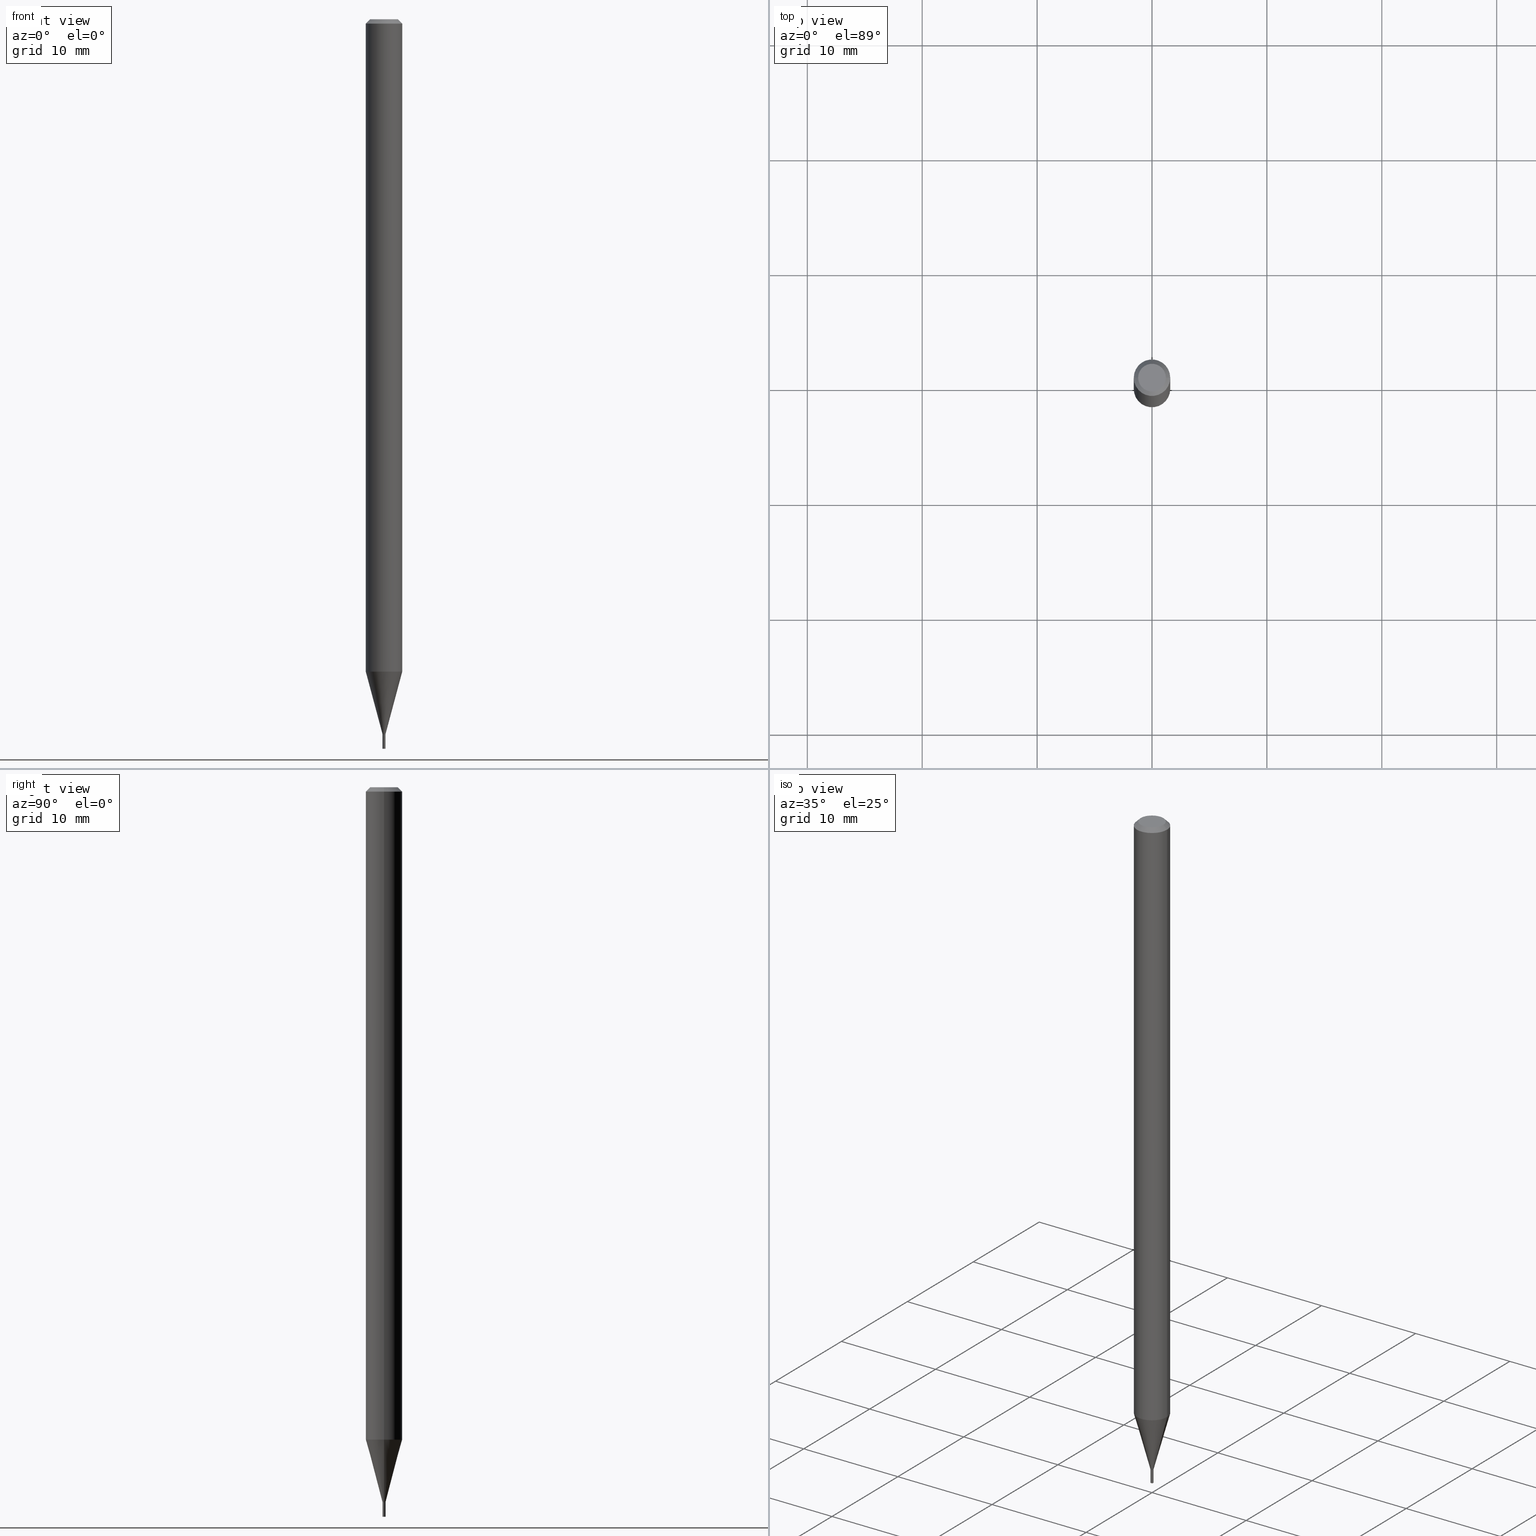
[diagram: canonical four-view strip — front | top / right | iso, engineering-drawing reading convention]
A machine part, canonical four-view strip (front | top / right | iso — engineering-drawing reading convention). The complete STEP part file that produces these views, byte-faithful:
ISO-10303-21;
HEADER;
FILE_DESCRIPTION (( 'STEP AP203' ),
    '1' );
FILE_NAME ('01227.STEP',
    '2024-03-20T00:16:26',
    ( '' ),
    ( '' ),
    'SwSTEP 2.0',
    'SolidWorks 2023',
    '' );
FILE_SCHEMA (( 'CONFIG_CONTROL_DESIGN' ));
ENDSEC;

DATA;
#1 = DIRECTION ( 'NONE',  ( -2.445468806185136597E-29, 3.491481338843145583E-15, 1.000000000000000000 ) ) ;
#2 = AXIS2_PLACEMENT_3D ( 'NONE', #426, #100, #139 ) ;
#3 = APPROVAL_PERSON_ORGANIZATION ( #167, #50, #447 ) ;
#4 = DIRECTION ( 'NONE',  ( 1.000000000000000000, -6.982962677686262766E-15, 0.000000000000000000 ) ) ;
#5 = EDGE_LOOP ( 'NONE', ( #189, #79 ) ) ;
#6 =( NAMED_UNIT ( * ) SI_UNIT ( $, .STERADIAN. ) SOLID_ANGLE_UNIT ( ) );
#7 = ADVANCED_FACE ( 'NONE', ( #54 ), #368, .T. ) ;
#8 = LINE ( 'NONE', #425, #374 ) ;
#9 = ORIENTED_EDGE ( 'NONE', *, *, #323, .T. ) ;
#10 = PERSON_AND_ORGANIZATION ( #399, #211 ) ;
#11 = APPROVAL_PERSON_ORGANIZATION ( #155, #66, #443 ) ;
#12 = APPROVAL_STATUS ( 'not_yet_approved' ) ;
#13 = DIRECTION ( 'NONE',  ( -2.445468806185136597E-29, 3.491481338843145583E-15, 1.000000000000000000 ) ) ;
#14 = ORIENTED_EDGE ( 'NONE', *, *, #238, .T. ) ;
#15 = APPROVAL_DATE_TIME ( #269, #174 ) ;
#16 = EDGE_LOOP ( 'NONE', ( #196, #343, #436, #46 ) ) ;
#17 = LINE ( 'NONE', #160, #102 ) ;
#18 = ORIENTED_EDGE ( 'NONE', *, *, #287, .T. ) ;
#19 = VECTOR ( 'NONE', #382, 39.37007874015748854 ) ;
#20 = ADVANCED_FACE ( 'NONE', ( #51 ), #404, .T. ) ;
#21 = PLANE ( 'NONE',  #445 ) ;
#22 = DIRECTION ( 'NONE',  ( 2.445468806185136597E-29, -3.491481338843145583E-15, -1.000000000000000000 ) ) ;
#23 = DATE_AND_TIME ( #233, #186 ) ;
#24 = ADVANCED_FACE ( 'NONE', ( #87 ), #345, .T. ) ;
#25 = ADVANCED_FACE ( 'NONE', ( #340 ), #166, .F. ) ;
#26 = DIRECTION ( 'NONE',  ( -2.445468806185136597E-29, 3.491481338843145583E-15, 1.000000000000000000 ) ) ;
#27 = LOCAL_TIME ( 20, 16, 26.00000000000000000, #310 ) ;
#28 = CARTESIAN_POINT ( 'NONE',  ( -0.06250000000000000000, 3.840629472727444916E-16, -0.01499999999999999944 ) ) ;
#29 = LINE ( 'NONE', #209, #178 ) ;
#30 = ORIENTED_EDGE ( 'NONE', *, *, #439, .F. ) ;
#31 = CARTESIAN_POINT ( 'NONE',  ( 0.000000000000000000, 0.000000000000000000, 0.000000000000000000 ) ) ;
#32 = CYLINDRICAL_SURFACE ( 'NONE', #111, 0.06250000000000000000 ) ;
#33 = EDGE_CURVE ( 'NONE', #397, #230, #17, .T. ) ;
#34 = CIRCLE ( 'NONE', #303, 0.005000000000000125872 ) ;
#35 = DIRECTION ( 'NONE',  ( -2.445468806185136877E-29, 3.491481338843145188E-15, 1.000000000000000000 ) ) ;
#36 = FACE_OUTER_BOUND ( 'NONE', #232, .T. ) ;
#37 = VERTEX_POINT ( 'NONE', #83 ) ;
#38 = ADVANCED_FACE ( 'NONE', ( #410 ), #21, .F. ) ;
#39 = DIRECTION ( 'NONE',  ( -2.445468806185136597E-29, 3.491481338843145583E-15, 1.000000000000000000 ) ) ;
#40 = PERSON_AND_ORGANIZATION_ROLE ( 'creator' ) ;
#41 = CARTESIAN_POINT ( 'NONE',  ( -0.005000000000000047809, -8.516856402708280153E-15, -2.449500000000000011 ) ) ;
#42 = AXIS2_PLACEMENT_3D ( 'NONE', #62, #350, #316 ) ;
#43 = DIRECTION ( 'NONE',  ( 1.000000000000000000, -6.982962677686262766E-15, 0.000000000000000000 ) ) ;
#44 = DIRECTION ( 'NONE',  ( 1.000000000000000000, -6.982962677686262766E-15, 0.000000000000000000 ) ) ;
#45 = CARTESIAN_POINT ( 'NONE',  ( 0.06250000000000000000, -4.888073874380388472E-16, -0.01499999999999999944 ) ) ;
#46 = ORIENTED_EDGE ( 'NONE', *, *, #89, .F. ) ;
#47 = ORIENTED_EDGE ( 'NONE', *, *, #288, .T. ) ;
#48 = LENGTH_MEASURE_WITH_UNIT ( LENGTH_MEASURE( 0.02539999999999999897 ), #442 );
#49 = LOCAL_TIME ( 20, 16, 26.00000000000000000, #263 ) ;
#50 = APPROVAL ( #308, 'UNSPECIFIED' ) ;
#51 = FACE_OUTER_BOUND ( 'NONE', #119, .T. ) ;
#52 = ORIENTED_EDGE ( 'NONE', *, *, #72, .T. ) ;
#53 = VECTOR ( 'NONE', #390, 39.37007874015748143 ) ;
#54 = FACE_OUTER_BOUND ( 'NONE', #460, .T. ) ;
#55 = CIRCLE ( 'NONE', #42, 0.005000000000000047809 ) ;
#56 = CC_DESIGN_PERSON_AND_ORGANIZATION_ASSIGNMENT ( #409, #120, ( #204 ) ) ;
#57 = DIRECTION ( 'NONE',  ( 1.000000000000000000, -6.982962677686351119E-15, 0.000000000000000000 ) ) ;
#58 = DIRECTION ( 'NONE',  ( 1.000000000000000000, -6.982962677686246989E-15, 0.000000000000000000 ) ) ;
#59 = VECTOR ( 'NONE', #212, 39.37007874015748143 ) ;
#60 = LINE ( 'NONE', #28, #19 ) ;
#61 = ORIENTED_EDGE ( 'NONE', *, *, #439, .T. ) ;
#62 = CARTESIAN_POINT ( 'NONE',  ( 5.990175840750493206E-29, -8.552383539496285982E-15, -2.449500000000000011 ) ) ;
#63 = DIRECTION ( 'NONE',  ( -0.7071067811865647812, 7.493145998870415691E-15, 0.7071067811865301422 ) ) ;
#64 = ADVANCED_FACE ( 'NONE', ( #193 ), #259, .T. ) ;
#65 = CYLINDRICAL_SURFACE ( 'NONE', #455, 0.005000000000000049544 ) ;
#66 = APPROVAL ( #12, 'UNSPECIFIED' ) ;
#67 = CC_DESIGN_APPROVAL ( #66, ( #201 ) ) ;
#68 = DIRECTION ( 'NONE',  ( 1.000000000000000000, -6.982962677686246989E-15, 0.000000000000000000 ) ) ;
#69 = DIRECTION ( 'NONE',  ( -2.445468806185136597E-29, 3.491481338843145583E-15, 1.000000000000000000 ) ) ;
#70 = DATE_AND_TIME ( #434, #333 ) ;
#71 = CARTESIAN_POINT ( 'NONE',  ( 3.668203209277705088E-31, -5.237222008264718399E-17, -0.01499999999999999944 ) ) ;
#72 = EDGE_CURVE ( 'NONE', #213, #420, #329, .T. ) ;
#73 = CARTESIAN_POINT ( 'NONE',  ( 5.991398575153586007E-29, -8.554129280165708275E-15, -2.450000000000000178 ) ) ;
#74 = AXIS2_PLACEMENT_3D ( 'NONE', #435, #359, #4 ) ;
#75 = DIRECTION ( 'NONE',  ( -2.445468806185136597E-29, 3.491481338843145583E-15, 1.000000000000000000 ) ) ;
#76 = EDGE_CURVE ( 'NONE', #37, #213, #8, .T. ) ;
#77 = CYLINDRICAL_SURFACE ( 'NONE', #281, 0.005000000000000125872 ) ;
#78 = VERTEX_POINT ( 'NONE', #247 ) ;
#79 = ORIENTED_EDGE ( 'NONE', *, *, #383, .F. ) ;
#80 = PERSON_AND_ORGANIZATION_ROLE ( 'classification_officer' ) ;
#81 = ADVANCED_FACE ( 'NONE', ( #182 ), #210, .F. ) ;
#82 = VERTEX_POINT ( 'NONE', #219 ) ;
#83 = CARTESIAN_POINT ( 'NONE',  ( 0.005000000000000049544, -8.589044093554139924E-15, -2.450000000000000178 ) ) ;
#84 = CIRCLE ( 'NONE', #362, 0.005000000000000125872 ) ;
#85 = CIRCLE ( 'NONE', #134, 0.005000000000000125872 ) ;
#86 = PERSON_AND_ORGANIZATION ( #399, #211 ) ;
#87 = FACE_OUTER_BOUND ( 'NONE', #365, .T. ) ;
#88 = ORIENTED_EDGE ( 'NONE', *, *, #377, .T. ) ;
#89 = EDGE_CURVE ( 'NONE', #433, #82, #353, .T. ) ;
#90 = DIRECTION ( 'NONE',  ( -2.445468806185136877E-29, 3.491481338843145188E-15, 1.000000000000000000 ) ) ;
#91 = CARTESIAN_POINT ( 'NONE',  ( -0.06250000000000000000, -7.360792889676777374E-15, -2.235407078564790595 ) ) ;
#92 = CONICAL_SURFACE ( 'NONE', #228, 0.004500000000000124560, 0.7853981633974728149 ) ;
#93 = VECTOR ( 'NONE', #90, 39.37007874015748143 ) ;
#94 = ORIENTED_EDGE ( 'NONE', *, *, #180, .T. ) ;
#95 = DIRECTION ( 'NONE',  ( -0.2588190451025214611, 5.211531920934550253E-15, 0.9659258262890679791 ) ) ;
#96 = DIRECTION ( 'NONE',  ( 1.000000000000000000, -6.982962677686266711E-15, 4.876176775795934672E-29 ) ) ;
#97 = ORIENTED_EDGE ( 'NONE', *, *, #185, .T. ) ;
#98 = DIRECTION ( 'NONE',  ( -2.445468806185136597E-29, 3.491481338843145583E-15, 1.000000000000000000 ) ) ;
#99 = ADVANCED_FACE ( 'NONE', ( #321 ), #92, .T. ) ;
#100 = DIRECTION ( 'NONE',  ( -2.445468806185136597E-29, 3.491481338843145583E-15, 1.000000000000000000 ) ) ;
#101 = CARTESIAN_POINT ( 'NONE',  ( 5.991398575153584886E-29, -8.554129280165706697E-15, -2.450000000000000178 ) ) ;
#102 = VECTOR ( 'NONE', #304, 39.37007874015748143 ) ;
#103 = DIRECTION ( 'NONE',  ( -2.445468806185136597E-29, 3.491481338843145583E-15, 1.000000000000000000 ) ) ;
#104 = ORIENTED_EDGE ( 'NONE', *, *, #154, .T. ) ;
#105 = CARTESIAN_POINT ( 'NONE',  ( 0.06250000000000000000, -4.364351673553916694E-16, 3.047610484872459871E-30 ) ) ;
#106 = CARTESIAN_POINT ( 'NONE',  ( 0.005000000000000125872, -8.763618160496296592E-15, -2.500000000000000000 ) ) ;
#107 = ORIENTED_EDGE ( 'NONE', *, *, #366, .F. ) ;
#108 = DIRECTION ( 'NONE',  ( 1.000000000000000000, -6.982962677686156270E-15, 0.000000000000000000 ) ) ;
#109 = CARTESIAN_POINT ( 'NONE',  ( 5.991398575153586007E-29, -8.554129280165708275E-15, -2.450000000000000178 ) ) ;
#110 = AXIS2_PLACEMENT_3D ( 'NONE', #444, #387, #319 ) ;
#111 = AXIS2_PLACEMENT_3D ( 'NONE', #283, #98, #246 ) ;
#112 = ORIENTED_EDGE ( 'NONE', *, *, #126, .F. ) ;
#113 = ADVANCED_FACE ( 'NONE', ( #206 ), #235, .T. ) ;
#114 = DIRECTION ( 'NONE',  ( -2.445468806185136597E-29, 3.491481338843145583E-15, 1.000000000000000000 ) ) ;
#115 = EDGE_CURVE ( 'NONE', #433, #397, #84, .T. ) ;
#116 = EDGE_CURVE ( 'NONE', #37, #135, #146, .T. ) ;
#117 = PERSON_AND_ORGANIZATION_ROLE ( 'design_owner' ) ;
#118 = ORIENTED_EDGE ( 'NONE', *, *, #126, .T. ) ;
#119 = EDGE_LOOP ( 'NONE', ( #307, #14, #250, #398 ) ) ;
#120 = PERSON_AND_ORGANIZATION_ROLE ( 'design_supplier' ) ;
#121 = ORIENTED_EDGE ( 'NONE', *, *, #72, .F. ) ;
#122 = CARTESIAN_POINT ( 'NONE',  ( 0.005000000000000047809, -8.587298352884717632E-15, -2.449500000000000011 ) ) ;
#123 = COORDINATED_UNIVERSAL_TIME_OFFSET ( 5, 0, .BEHIND. ) ;
#124 = DIRECTION ( 'NONE',  ( -1.000000000000000000, 6.982962677686265922E-15, -4.876176775795935793E-29 ) ) ;
#125 = APPROVAL_STATUS ( 'not_yet_approved' ) ;
#126 = EDGE_CURVE ( 'NONE', #423, #135, #326, .T. ) ;
#127 = CIRCLE ( 'NONE', #265, 0.06250000000000000000 ) ;
#128 = AXIS2_PLACEMENT_3D ( 'NONE', #314, #13, #96 ) ;
#129 = FACE_OUTER_BOUND ( 'NONE', #448, .T. ) ;
#130 = EDGE_CURVE ( 'NONE', #420, #389, #159, .T. ) ;
#131 = CARTESIAN_POINT ( 'NONE',  ( -0.005000000000000049544, 3.552713678800536132E-17, -2.459467545127476783E-31 ) ) ;
#132 = VERTEX_POINT ( 'NONE', #299 ) ;
#133 = CARTESIAN_POINT ( 'NONE',  ( -0.005000000000000049544, -8.518602143377702445E-15, -2.450000000000000178 ) ) ;
#134 = AXIS2_PLACEMENT_3D ( 'NONE', #429, #103, #253 ) ;
#135 = VERTEX_POINT ( 'NONE', #122 ) ;
#136 = DIRECTION ( 'NONE',  ( -2.445468806185136597E-29, 3.491481338843145583E-15, 1.000000000000000000 ) ) ;
#137 = CARTESIAN_POINT ( 'NONE',  ( 5.991398575153584886E-29, -8.554129280165706697E-15, -2.450000000000000178 ) ) ;
#138 = CARTESIAN_POINT ( 'NONE',  ( 0.000000000000000000, 0.000000000000000000, 0.000000000000000000 ) ) ;
#139 = DIRECTION ( 'NONE',  ( 1.000000000000000000, -6.982962677686267499E-15, 5.108144071313017768E-29 ) ) ;
#140 = VERTEX_POINT ( 'NONE', #91 ) ;
#141 = VECTOR ( 'NONE', #188, 39.37007874015748143 ) ;
#142 = VECTOR ( 'NONE', #280, 39.37007874015748854 ) ;
#143 = DESIGN_CONTEXT ( 'detailed design', #279, 'design' ) ;
#144 =( NAMED_UNIT ( * ) PLANE_ANGLE_UNIT ( ) SI_UNIT ( $, .RADIAN. ) );
#145 = CARTESIAN_POINT ( 'NONE',  ( 6.194428952736783458E-29, -8.613054816532157721E-15, -2.500000000000000000 ) ) ;
#146 = LINE ( 'NONE', #258, #141 ) ;
#147 = DIRECTION ( 'NONE',  ( -2.445468806185136597E-29, 3.491481338843145583E-15, 1.000000000000000000 ) ) ;
#148 = ORIENTED_EDGE ( 'NONE', *, *, #116, .T. ) ;
#149 = ORIENTED_EDGE ( 'NONE', *, *, #466, .F. ) ;
#150 = APPLICATION_PROTOCOL_DEFINITION ( 'international standard', 'config_control_design', 1994, #279 ) ;
#151 = DIRECTION ( 'NONE',  ( 1.000000000000000000, -6.982962677686265133E-15, 0.000000000000000000 ) ) ;
#152 = CIRCLE ( 'NONE', #415, 0.06250000000000000000 ) ;
#153 = EDGE_CURVE ( 'NONE', #389, #420, #127, .T. ) ;
#154 = EDGE_CURVE ( 'NONE', #302, #241, #194, .T. ) ;
#155 = PERSON_AND_ORGANIZATION ( #399, #211 ) ;
#156 = ORIENTED_EDGE ( 'NONE', *, *, #287, .F. ) ;
#157 = CYLINDRICAL_SURFACE ( 'NONE', #128, 0.005000000000000049544 ) ;
#158 = ORIENTED_EDGE ( 'NONE', *, *, #236, .F. ) ;
#159 = CIRCLE ( 'NONE', #274, 0.06250000000000000000 ) ;
#160 = CARTESIAN_POINT ( 'NONE',  ( -0.005000000000000125872, 3.552713678800590366E-17, -2.459467545127514881E-31 ) ) ;
#161 = CIRCLE ( 'NONE', #2, 0.04749999999999999362 ) ;
#162 = ORIENTED_EDGE ( 'NONE', *, *, #236, .T. ) ;
#163 = PERSON_AND_ORGANIZATION_ROLE ( 'creator' ) ;
#164 = ORIENTED_EDGE ( 'NONE', *, *, #418, .T. ) ;
#165 = CALENDAR_DATE ( 2024, 19, 3 ) ;
#166 = PLANE ( 'NONE',  #332 ) ;
#167 = PERSON_AND_ORGANIZATION ( #399, #211 ) ;
#168 = ADVANCED_BREP_SHAPE_REPRESENTATION ( '01227', ( #456, #296, #346 ), #252 ) ;
#169 = AXIS2_PLACEMENT_3D ( 'NONE', #145, #294, #325 ) ;
#170 = CC_DESIGN_APPROVAL ( #174, ( #204 ) ) ;
#171 = CARTESIAN_POINT ( 'NONE',  ( -0.005000000000000125872, -8.605889176848780779E-15, -2.500000000000000000 ) ) ;
#172 = CARTESIAN_POINT ( 'NONE',  ( -0.06250000000000000000, 4.440892098500626162E-16, -3.074334431409316114E-30 ) ) ;
#173 = EDGE_CURVE ( 'NONE', #78, #132, #198, .T. ) ;
#174 = APPROVAL ( #125, 'UNSPECIFIED' ) ;
#175 = EDGE_LOOP ( 'NONE', ( #217, #297, #282, #405 ) ) ;
#176 = LINE ( 'NONE', #356, #142 ) ;
#177 = VECTOR ( 'NONE', #35, 39.37007874015748143 ) ;
#178 = VECTOR ( 'NONE', #63, 39.37007874015748854 ) ;
#179 = DIRECTION ( 'NONE',  ( 1.000000000000000000, -6.982962677686246989E-15, 0.000000000000000000 ) ) ;
#180 = EDGE_CURVE ( 'NONE', #82, #230, #34, .T. ) ;
#181 = CARTESIAN_POINT ( 'NONE',  ( 5.991398575153584886E-29, -8.554129280165706697E-15, -2.450000000000000178 ) ) ;
#182 = FACE_OUTER_BOUND ( 'NONE', #5, .T. ) ;
#183 = DIRECTION ( 'NONE',  ( 1.000000000000000000, -6.982962677686267499E-15, 5.108144071313017768E-29 ) ) ;
#184 = COORDINATED_UNIVERSAL_TIME_OFFSET ( 5, 0, .BEHIND. ) ;
#185 = EDGE_CURVE ( 'NONE', #132, #135, #416, .T. ) ;
#186 = LOCAL_TIME ( 20, 16, 26.00000000000000000, #123 ) ;
#187 = DIRECTION ( 'NONE',  ( 1.000000000000000000, -6.982962677686265922E-15, 4.876176775795935793E-29 ) ) ;
#188 = DIRECTION ( 'NONE',  ( -2.445468806185136877E-29, 3.491481338843145188E-15, 1.000000000000000000 ) ) ;
#189 = ORIENTED_EDGE ( 'NONE', *, *, #115, .F. ) ;
#190 = FACE_OUTER_BOUND ( 'NONE', #175, .T. ) ;
#191 = ADVANCED_FACE ( 'NONE', ( #129 ), #157, .F. ) ;
#192 = ORIENTED_EDGE ( 'NONE', *, *, #451, .F. ) ;
#193 = FACE_OUTER_BOUND ( 'NONE', #458, .T. ) ;
#194 = CIRCLE ( 'NONE', #453, 0.04749999999999999362 ) ;
#195 = APPROVAL_PERSON_ORGANIZATION ( #360, #174, #371 ) ;
#196 = ORIENTED_EDGE ( 'NONE', *, *, #115, .T. ) ;
#197 = DATE_TIME_ROLE ( 'classification_date' ) ;
#198 = CIRCLE ( 'NONE', #441, 0.004500000000000124560 ) ;
#199 = ORIENTED_EDGE ( 'NONE', *, *, #130, .F. ) ;
#200 = EDGE_CURVE ( 'NONE', #132, #78, #260, .T. ) ;
#201 = PRODUCT_DEFINITION ( 'UNKNOWN', '', #204, #143 ) ;
#202 = EDGE_LOOP ( 'NONE', ( #414, #311, #97, #112 ) ) ;
#203 = CLOSED_SHELL ( 'NONE', ( #264, #81, #432, #38 ) ) ;
#204 = PRODUCT_DEFINITION_FORMATION_WITH_SPECIFIED_SOURCE ( 'ANY', '', #394, .NOT_KNOWN. ) ;
#205 = LINE ( 'NONE', #131, #59 ) ;
#206 = FACE_OUTER_BOUND ( 'NONE', #270, .T. ) ;
#207 = EDGE_CURVE ( 'NONE', #135, #423, #55, .T. ) ;
#208 = CARTESIAN_POINT ( 'NONE',  ( -0.04749999999999999362, 3.578768372314260303E-16, 2.835939495326600426E-15 ) ) ;
#209 = CARTESIAN_POINT ( 'NONE',  ( -0.004500000000000124560, -8.522154857056500977E-15, -2.450000000000000178 ) ) ;
#210 = PLANE ( 'NONE',  #169 ) ;
#211 = ORGANIZATION ( 'UNSPECIFIED', 'UNSPECIFIED', '' ) ;
#212 = DIRECTION ( 'NONE',  ( -2.445468806185136877E-29, 3.491481338843145188E-15, 1.000000000000000000 ) ) ;
#213 = VERTEX_POINT ( 'NONE', #352 ) ;
#214 = CARTESIAN_POINT ( 'NONE',  ( 5.991398575153584886E-29, -8.554129280165706697E-15, -2.450000000000000178 ) ) ;
#215 = APPROVAL_DATE_TIME ( #262, #66 ) ;
#216 = DIRECTION ( 'NONE',  ( 0.2588190451025214611, 1.565188264969620982E-15, 0.9659258262890679791 ) ) ;
#217 = ORIENTED_EDGE ( 'NONE', *, *, #33, .F. ) ;
#218 = DATE_TIME_ROLE ( 'creation_date' ) ;
#219 = CARTESIAN_POINT ( 'NONE',  ( 0.005000000000000125872, -8.589044093554139924E-15, -2.450000000000000178 ) ) ;
#220 = DIRECTION ( 'NONE',  ( -2.445468806185136597E-29, 3.491481338843145583E-15, 1.000000000000000000 ) ) ;
#221 = DIRECTION ( 'NONE',  ( -2.445468806185136597E-29, 3.491481338843145583E-15, 1.000000000000000000 ) ) ;
#222 = AXIS2_PLACEMENT_3D ( 'NONE', #109, #221, #43 ) ;
#223 = VECTOR ( 'NONE', #95, 39.37007874015748143 ) ;
#224 = DIRECTION ( 'NONE',  ( 1.000000000000000000, -6.982962677686262766E-15, 0.000000000000000000 ) ) ;
#225 = DIRECTION ( 'NONE',  ( 1.000000000000000000, -6.982962677686266711E-15, 0.000000000000000000 ) ) ;
#226 = DIRECTION ( 'NONE',  ( -2.445468806185136597E-29, 3.491481338843145583E-15, 1.000000000000000000 ) ) ;
#227 = CARTESIAN_POINT ( 'NONE',  ( 5.991398575153584886E-29, -8.554129280165706697E-15, -2.450000000000000178 ) ) ;
#228 = AXIS2_PLACEMENT_3D ( 'NONE', #286, #244, #58 ) ;
#229 = SECURITY_CLASSIFICATION ( '', '', #273 ) ;
#230 = VERTEX_POINT ( 'NONE', #385 ) ;
#231 = DIRECTION ( 'NONE',  ( -2.445468806185136597E-29, 3.491481338843145583E-15, 1.000000000000000000 ) ) ;
#232 = EDGE_LOOP ( 'NONE', ( #268, #465 ) ) ;
#233 = CALENDAR_DATE ( 2024, 19, 3 ) ;
#234 = EDGE_LOOP ( 'NONE', ( #104, #88 ) ) ;
#235 = CONICAL_SURFACE ( 'NONE', #440, 0.004500000000000124560, 0.7853981633974728149 ) ;
#236 = EDGE_CURVE ( 'NONE', #305, #140, #242, .T. ) ;
#237 = ADVANCED_FACE ( 'NONE', ( #424 ), #317, .T. ) ;
#238 = EDGE_CURVE ( 'NONE', #241, #420, #176, .T. ) ;
#239 = CARTESIAN_POINT ( 'NONE',  ( 6.113672015462842613E-29, -8.728703347107864943E-15, -2.500000000000000000 ) ) ;
#240 = CARTESIAN_POINT ( 'NONE',  ( 0.004500000000000124560, -8.585552612215296917E-15, -2.450000000000000178 ) ) ;
#241 = VERTEX_POINT ( 'NONE', #290 ) ;
#242 = LINE ( 'NONE', #133, #223 ) ;
#243 = LOCAL_TIME ( 20, 16, 26.00000000000000000, #293 ) ;
#244 = DIRECTION ( 'NONE',  ( -2.445468806185136597E-29, 3.491481338843145583E-15, 1.000000000000000000 ) ) ;
#245 = DIRECTION ( 'NONE',  ( 1.000000000000000000, -6.982962677686266711E-15, 4.876176775795935793E-29 ) ) ;
#246 = DIRECTION ( 'NONE',  ( 1.000000000000000000, -6.982962677686266711E-15, 4.876176775795935793E-29 ) ) ;
#247 = CARTESIAN_POINT ( 'NONE',  ( -0.004500000000000124560, -8.519505629882390565E-15, -2.450000000000000178 ) ) ;
#248 = CARTESIAN_POINT ( 'NONE',  ( 5.991398575153584886E-29, -8.554129280165706697E-15, -2.450000000000000178 ) ) ;
#249 = DIRECTION ( 'NONE',  ( 1.000000000000000000, -6.982962677686262766E-15, 0.000000000000000000 ) ) ;
#250 = ORIENTED_EDGE ( 'NONE', *, *, #130, .T. ) ;
#251 = CARTESIAN_POINT ( 'NONE',  ( 3.668203209277705088E-31, -5.237222008264718399E-17, -0.01499999999999999944 ) ) ;
#252 =( GEOMETRIC_REPRESENTATION_CONTEXT ( 3 ) GLOBAL_UNCERTAINTY_ASSIGNED_CONTEXT ( ( #256 ) ) GLOBAL_UNIT_ASSIGNED_CONTEXT ( ( #295, #144, #6 ) ) REPRESENTATION_CONTEXT ( 'NONE', 'WORKASPACE' ) );
#253 = DIRECTION ( 'NONE',  ( 1.000000000000000000, -6.982962677686156270E-15, 0.000000000000000000 ) ) ;
#254 = PRODUCT_RELATED_PRODUCT_CATEGORY ( 'detail', '', ( #394 ) ) ;
#255 = CALENDAR_DATE ( 2024, 19, 3 ) ;
#256 = UNCERTAINTY_MEASURE_WITH_UNIT (LENGTH_MEASURE( 1.000000000000000082E-05 ), #295, 'distance_accuracy_value', 'NONE');
#257 = APPLICATION_CONTEXT ( 'configuration controlled 3d designs of mechanical parts and assemblies' ) ;
#258 = CARTESIAN_POINT ( 'NONE',  ( 0.005000000000000049544, -3.491481338843167991E-17, 2.438088387897991631E-31 ) ) ;
#259 = CONICAL_SURFACE ( 'NONE', #222, 0.005000000000000049544, 0.2617993877991501850 ) ;
#260 = CIRCLE ( 'NONE', #431, 0.004500000000000124560 ) ;
#261 = CARTESIAN_POINT ( 'NONE',  ( 0.000000000000000000, 0.000000000000000000, 0.000000000000000000 ) ) ;
#262 = DATE_AND_TIME ( #255, #243 ) ;
#263 = COORDINATED_UNIVERSAL_TIME_OFFSET ( 5, 0, .BEHIND. ) ;
#264 = ADVANCED_FACE ( 'NONE', ( #461 ), #421, .T. ) ;
#265 = AXIS2_PLACEMENT_3D ( 'NONE', #251, #428, #358 ) ;
#266 = AXIS2_PLACEMENT_3D ( 'NONE', #227, #114, #402 ) ;
#267 = AXIS2_PLACEMENT_3D ( 'NONE', #181, #324, #464 ) ;
#268 = ORIENTED_EDGE ( 'NONE', *, *, #200, .F. ) ;
#269 = DATE_AND_TIME ( #165, #49 ) ;
#270 = EDGE_LOOP ( 'NONE', ( #454, #9, #379, #285 ) ) ;
#271 = CARTESIAN_POINT ( 'NONE',  ( 3.491481338849212638E-17, 0.004999999999991571950, -2.450000000000000178 ) ) ;
#272 = ADVANCED_FACE ( 'NONE', ( #459 ), #32, .T. ) ;
#273 = SECURITY_CLASSIFICATION_LEVEL ( 'unclassified' ) ;
#274 = AXIS2_PLACEMENT_3D ( 'NONE', #71, #220, #225 ) ;
#275 = CIRCLE ( 'NONE', #375, 0.005000000000000049544 ) ;
#276 = CALENDAR_DATE ( 2024, 19, 3 ) ;
#277 = ORIENTED_EDGE ( 'NONE', *, *, #76, .F. ) ;
#278 = DIRECTION ( 'NONE',  ( 1.000000000000000000, -6.982962677686265922E-15, 4.876176775795935793E-29 ) ) ;
#279 = APPLICATION_CONTEXT ( 'configuration controlled 3d designs of mechanical parts and assemblies' ) ;
#280 = DIRECTION ( 'NONE',  ( 0.7071067811864806263, -7.319954787623028853E-15, -0.7071067811866141861 ) ) ;
#281 = AXIS2_PLACEMENT_3D ( 'NONE', #328, #226, #187 ) ;
#282 = ORIENTED_EDGE ( 'NONE', *, *, #89, .T. ) ;
#283 = CARTESIAN_POINT ( 'NONE',  ( 0.000000000000000000, 0.000000000000000000, 0.000000000000000000 ) ) ;
#284 = DIRECTION ( 'NONE',  ( 1.000000000000000000, -6.982962677686266711E-15, 4.876176775795934672E-29 ) ) ;
#285 = ORIENTED_EDGE ( 'NONE', *, *, #185, .F. ) ;
#286 = CARTESIAN_POINT ( 'NONE',  ( 5.991398575153584886E-29, -8.554129280165706697E-15, -2.450000000000000178 ) ) ;
#287 = EDGE_CURVE ( 'NONE', #37, #305, #275, .T. ) ;
#288 = EDGE_CURVE ( 'NONE', #302, #389, #60, .T. ) ;
#289 = CARTESIAN_POINT ( 'NONE',  ( -6.935201572049625974E-44, 9.901629826021081830E-30, 2.835939495326602793E-15 ) ) ;
#290 = CARTESIAN_POINT ( 'NONE',  ( 0.04749999999999999362, -4.035134999187529319E-16, 2.835939495326605554E-15 ) ) ;
#291 = DIMENSIONAL_EXPONENTS ( 1.000000000000000000, 0.000000000000000000, 0.000000000000000000, 0.000000000000000000, 0.000000000000000000, 0.000000000000000000, 0.000000000000000000 ) ;
#292 = AXIS2_PLACEMENT_3D ( 'NONE', #31, #69, #245 ) ;
#293 = COORDINATED_UNIVERSAL_TIME_OFFSET ( 5, 0, .BEHIND. ) ;
#294 = DIRECTION ( 'NONE',  ( -2.438088387897960049E-29, 3.491481338843145188E-15, 1.000000000000000000 ) ) ;
#295 =( CONVERSION_BASED_UNIT ( 'INCH', #48 ) LENGTH_UNIT ( ) NAMED_UNIT ( #291 ) );
#296 = MANIFOLD_SOLID_BREP ( 'Body-Move/Copy2[2]', #430 ) ;
#297 = ORIENTED_EDGE ( 'NONE', *, *, #383, .T. ) ;
#298 = APPLICATION_PROTOCOL_DEFINITION ( 'international standard', 'config_control_design', 1994, #257 ) ;
#299 = CARTESIAN_POINT ( 'NONE',  ( 0.004500000000000124560, -8.585552612215296917E-15, -2.450000000000000178 ) ) ;
#300 = CC_DESIGN_PERSON_AND_ORGANIZATION_ASSIGNMENT ( #10, #117, ( #394 ) ) ;
#301 = DIRECTION ( 'NONE',  ( -1.000000000000000000, 6.982962677686266711E-15, 0.000000000000000000 ) ) ;
#302 = VERTEX_POINT ( 'NONE', #208 ) ;
#303 = AXIS2_PLACEMENT_3D ( 'NONE', #214, #26, #57 ) ;
#304 = DIRECTION ( 'NONE',  ( -2.445468806185136877E-29, 3.491481338843145188E-15, 1.000000000000000000 ) ) ;
#305 = VERTEX_POINT ( 'NONE', #462 ) ;
#306 = CARTESIAN_POINT ( 'NONE',  ( 3.316907271900976096E-16, 0.04749999999999999362, 1.252124384068252049E-15 ) ) ;
#307 = ORIENTED_EDGE ( 'NONE', *, *, #377, .F. ) ;
#308 = APPROVAL_STATUS ( 'not_yet_approved' ) ;
#309 = EDGE_LOOP ( 'NONE', ( #417, #315, #199, #121 ) ) ;
#310 = COORDINATED_UNIVERSAL_TIME_OFFSET ( 5, 0, .BEHIND. ) ;
#311 = ORIENTED_EDGE ( 'NONE', *, *, #173, .T. ) ;
#312 = AXIS2_PLACEMENT_3D ( 'NONE', #73, #147, #224 ) ;
#313 = LINE ( 'NONE', #172, #93 ) ;
#314 = CARTESIAN_POINT ( 'NONE',  ( 0.000000000000000000, 0.000000000000000000, 0.000000000000000000 ) ) ;
#315 = ORIENTED_EDGE ( 'NONE', *, *, #401, .T. ) ;
#316 = DIRECTION ( 'NONE',  ( 1.000000000000000000, -6.982962677686265133E-15, 0.000000000000000000 ) ) ;
#317 = CYLINDRICAL_SURFACE ( 'NONE', #292, 0.06250000000000000000 ) ;
#318 = AXIS2_PLACEMENT_3D ( 'NONE', #384, #136, #278 ) ;
#319 = DIRECTION ( 'NONE',  ( -1.000000000000000000, 6.982962677686266711E-15, 0.000000000000000000 ) ) ;
#320 = FACE_OUTER_BOUND ( 'NONE', #337, .T. ) ;
#321 = FACE_OUTER_BOUND ( 'NONE', #202, .T. ) ;
#322 = DIRECTION ( 'NONE',  ( -2.445468806185136597E-29, 3.491481338843145583E-15, 1.000000000000000000 ) ) ;
#323 = EDGE_CURVE ( 'NONE', #78, #423, #29, .T. ) ;
#324 = DIRECTION ( 'NONE',  ( -2.438088387897960049E-29, 3.491481338843145188E-15, 1.000000000000000000 ) ) ;
#325 = DIRECTION ( 'NONE',  ( 1.000000000000000000, -6.982962677686265922E-15, 4.876176775795935793E-29 ) ) ;
#326 = CIRCLE ( 'NONE', #354, 0.005000000000000047809 ) ;
#327 = CIRCLE ( 'NONE', #312, 0.005000000000000049544 ) ;
#328 = CARTESIAN_POINT ( 'NONE',  ( 0.000000000000000000, 0.000000000000000000, 0.000000000000000000 ) ) ;
#329 = LINE ( 'NONE', #105, #53 ) ;
#330 = ORIENTED_EDGE ( 'NONE', *, *, #207, .T. ) ;
#331 = ORIENTED_EDGE ( 'NONE', *, *, #76, .T. ) ;
#332 = AXIS2_PLACEMENT_3D ( 'NONE', #306, #370, #124 ) ;
#333 = LOCAL_TIME ( 20, 16, 26.00000000000000000, #184 ) ;
#334 = CC_DESIGN_DATE_AND_TIME_ASSIGNMENT ( #70, #218, ( #201 ) ) ;
#335 = CC_DESIGN_PERSON_AND_ORGANIZATION_ASSIGNMENT ( #86, #80, ( #229 ) ) ;
#336 = DIRECTION ( 'NONE',  ( -1.000000000000000000, 6.982962677686265922E-15, -4.876176775795935793E-29 ) ) ;
#337 = EDGE_LOOP ( 'NONE', ( #107, #156, #148, #330 ) ) ;
#338 = DATE_AND_TIME ( #276, #27 ) ;
#339 = VECTOR ( 'NONE', #378, 39.37007874015748854 ) ;
#340 = FACE_OUTER_BOUND ( 'NONE', #234, .T. ) ;
#341 = ORIENTED_EDGE ( 'NONE', *, *, #366, .T. ) ;
#342 = PERSON_AND_ORGANIZATION ( #399, #211 ) ;
#343 = ORIENTED_EDGE ( 'NONE', *, *, #33, .T. ) ;
#344 = DIRECTION ( 'NONE',  ( -2.445468806185136597E-29, 3.491481338843145583E-15, 1.000000000000000000 ) ) ;
#345 = CONICAL_SURFACE ( 'NONE', #406, 0.005000000000000049544, 0.2617993877991501850 ) ;
#346 = AXIS2_PLACEMENT_3D ( 'NONE', #261, #403, #393 ) ;
#347 = CC_DESIGN_PERSON_AND_ORGANIZATION_ASSIGNMENT ( #342, #163, ( #204 ) ) ;
#348 = CARTESIAN_POINT ( 'NONE',  ( -0.06250000000000000000, -3.484537949954681116E-15, -0.01499999999999999944 ) ) ;
#349 = ORIENTED_EDGE ( 'NONE', *, *, #153, .F. ) ;
#350 = DIRECTION ( 'NONE',  ( -2.445468806185136597E-29, 3.491481338843145583E-15, 1.000000000000000000 ) ) ;
#351 = ADVANCED_FACE ( 'NONE', ( #320 ), #65, .F. ) ;
#352 = CARTESIAN_POINT ( 'NONE',  ( 0.06250000000000000000, -8.241317266882231660E-15, -2.235407078564790595 ) ) ;
#353 = LINE ( 'NONE', #427, #177 ) ;
#354 = AXIS2_PLACEMENT_3D ( 'NONE', #395, #1, #151 ) ;
#355 = CIRCLE ( 'NONE', #74, 0.06250000000000000000 ) ;
#356 = CARTESIAN_POINT ( 'NONE',  ( 0.06250000000000000000, -4.811533449433679005E-16, -0.01499999999999999944 ) ) ;
#357 = ORIENTED_EDGE ( 'NONE', *, *, #451, .T. ) ;
#358 = DIRECTION ( 'NONE',  ( 1.000000000000000000, -6.982962677686266711E-15, 0.000000000000000000 ) ) ;
#359 = DIRECTION ( 'NONE',  ( -2.445468806185136597E-29, 3.491481338843145583E-15, 1.000000000000000000 ) ) ;
#360 = PERSON_AND_ORGANIZATION ( #399, #211 ) ;
#361 = PRODUCT_DEFINITION_SHAPE ( 'NONE', 'NONE',  #201 ) ;
#362 = AXIS2_PLACEMENT_3D ( 'NONE', #239, #376, #108 ) ;
#363 = CARTESIAN_POINT ( 'NONE',  ( 5.466618279755642309E-29, -7.804882099526839990E-15, -2.235407078564790595 ) ) ;
#364 = MECHANICAL_CONTEXT ( 'NONE', #257, 'mechanical' ) ;
#365 = EDGE_LOOP ( 'NONE', ( #158, #61, #331, #192 ) ) ;
#366 = EDGE_CURVE ( 'NONE', #305, #423, #205, .T. ) ;
#367 = ADVANCED_FACE ( 'NONE', ( #36 ), #457, .F. ) ;
#368 = CONICAL_SURFACE ( 'NONE', #396, 0.06250000000000000000, 0.7853981633973537990 ) ;
#369 = CARTESIAN_POINT ( 'NONE',  ( 3.668203209277705088E-31, -5.237222008264718399E-17, -0.01499999999999999944 ) ) ;
#370 = DIRECTION ( 'NONE',  ( 2.438088387897960049E-29, -3.491481338843145188E-15, -1.000000000000000000 ) ) ;
#371 = APPROVAL_ROLE ( '' ) ;
#372 = DIRECTION ( 'NONE',  ( 1.000000000000000000, -6.982962677686262766E-15, 0.000000000000000000 ) ) ;
#373 = EDGE_LOOP ( 'NONE', ( #437, #357, #52, #349 ) ) ;
#374 = VECTOR ( 'NONE', #216, 39.37007874015748143 ) ;
#375 = AXIS2_PLACEMENT_3D ( 'NONE', #380, #344, #249 ) ;
#376 = DIRECTION ( 'NONE',  ( -2.445468806185136597E-29, 3.491481338843145583E-15, 1.000000000000000000 ) ) ;
#377 = EDGE_CURVE ( 'NONE', #241, #302, #161, .T. ) ;
#378 = DIRECTION ( 'NONE',  ( 0.7071067811865647812, -2.468850131082438104E-15, 0.7071067811865301422 ) ) ;
#379 = ORIENTED_EDGE ( 'NONE', *, *, #207, .F. ) ;
#380 = CARTESIAN_POINT ( 'NONE',  ( 5.991398575153586007E-29, -8.554129280165708275E-15, -2.450000000000000178 ) ) ;
#381 = CIRCLE ( 'NONE', #266, 0.005000000000000125872 ) ;
#382 = DIRECTION ( 'NONE',  ( -0.7071067811864806263, 2.468850131081556552E-15, -0.7071067811866141861 ) ) ;
#383 = EDGE_CURVE ( 'NONE', #397, #433, #85, .T. ) ;
#384 = CARTESIAN_POINT ( 'NONE',  ( 0.000000000000000000, 0.000000000000000000, 0.000000000000000000 ) ) ;
#385 = CARTESIAN_POINT ( 'NONE',  ( -0.005000000000000125872, -8.605889176848780779E-15, -2.450000000000000178 ) ) ;
#386 = DIRECTION ( 'NONE',  ( -2.445468806185136597E-29, 3.491481338843145583E-15, 1.000000000000000000 ) ) ;
#387 = DIRECTION ( 'NONE',  ( 2.445468806185136597E-29, -3.491481338843145583E-15, -1.000000000000000000 ) ) ;
#388 = DIRECTION ( 'NONE',  ( -2.445468806185136597E-29, 3.491481338843145583E-15, 1.000000000000000000 ) ) ;
#389 = VERTEX_POINT ( 'NONE', #348 ) ;
#390 = DIRECTION ( 'NONE',  ( -2.445468806185136877E-29, 3.491481338843145188E-15, 1.000000000000000000 ) ) ;
#391 = PERSON_AND_ORGANIZATION ( #399, #211 ) ;
#392 = ORIENTED_EDGE ( 'NONE', *, *, #116, .F. ) ;
#393 = DIRECTION ( 'NONE',  ( 1.000000000000000000, 0.000000000000000000, 0.000000000000000000 ) ) ;
#394 = PRODUCT ( '01227', '01227', '', ( #364 ) ) ;
#395 = CARTESIAN_POINT ( 'NONE',  ( 5.990175840750493206E-29, -8.552383539496285982E-15, -2.449500000000000011 ) ) ;
#396 = AXIS2_PLACEMENT_3D ( 'NONE', #369, #22, #301 ) ;
#397 = VERTEX_POINT ( 'NONE', #171 ) ;
#398 = ORIENTED_EDGE ( 'NONE', *, *, #288, .F. ) ;
#399 = PERSON ( 'UNSPECIFIED', 'UNSPECIFIED', 'UNSPECIFIED', ('UNSPECIFIED'), ('UNSPECIFIED'), ('UNSPECIFIED') ) ;
#400 = CC_DESIGN_PERSON_AND_ORGANIZATION_ASSIGNMENT ( #391, #40, ( #201 ) ) ;
#401 = EDGE_CURVE ( 'NONE', #140, #389, #313, .T. ) ;
#402 = DIRECTION ( 'NONE',  ( 1.000000000000000000, -6.982962677686351119E-15, 0.000000000000000000 ) ) ;
#403 = DIRECTION ( 'NONE',  ( 0.000000000000000000, 0.000000000000000000, 1.000000000000000000 ) ) ;
#404 = CONICAL_SURFACE ( 'NONE', #110, 0.06250000000000000000, 0.7853981633973537990 ) ;
#405 = ORIENTED_EDGE ( 'NONE', *, *, #418, .F. ) ;
#406 = AXIS2_PLACEMENT_3D ( 'NONE', #407, #231, #372 ) ;
#407 = CARTESIAN_POINT ( 'NONE',  ( 5.991398575153586007E-29, -8.554129280165708275E-15, -2.450000000000000178 ) ) ;
#408 = EDGE_LOOP ( 'NONE', ( #94, #164 ) ) ;
#409 = PERSON_AND_ORGANIZATION ( #399, #211 ) ;
#410 = FACE_OUTER_BOUND ( 'NONE', #408, .T. ) ;
#411 = ORIENTED_EDGE ( 'NONE', *, *, #154, .F. ) ;
#412 = APPROVAL_DATE_TIME ( #23, #50 ) ;
#413 = DIRECTION ( 'NONE',  ( 2.438088387897960049E-29, -3.491481338843145188E-15, -1.000000000000000000 ) ) ;
#414 = ORIENTED_EDGE ( 'NONE', *, *, #323, .F. ) ;
#415 = AXIS2_PLACEMENT_3D ( 'NONE', #363, #75, #44 ) ;
#416 = LINE ( 'NONE', #240, #339 ) ;
#417 = ORIENTED_EDGE ( 'NONE', *, *, #466, .T. ) ;
#418 = EDGE_CURVE ( 'NONE', #230, #82, #381, .T. ) ;
#419 = DIRECTION ( 'NONE',  ( -2.445468806185136597E-29, 3.491481338843145583E-15, 1.000000000000000000 ) ) ;
#420 = VERTEX_POINT ( 'NONE', #45 ) ;
#421 = CYLINDRICAL_SURFACE ( 'NONE', #318, 0.005000000000000125872 ) ;
#422 = CC_DESIGN_SECURITY_CLASSIFICATION ( #229, ( #204 ) ) ;
#423 = VERTEX_POINT ( 'NONE', #41 ) ;
#424 = FACE_OUTER_BOUND ( 'NONE', #373, .T. ) ;
#425 = CARTESIAN_POINT ( 'NONE',  ( 0.005000000000000049544, -8.589044093554139924E-15, -2.450000000000000178 ) ) ;
#426 = CARTESIAN_POINT ( 'NONE',  ( -6.935201572049625974E-44, 9.901629826021081830E-30, 2.835939495326602793E-15 ) ) ;
#427 = CARTESIAN_POINT ( 'NONE',  ( 0.005000000000000125872, -3.491481338843220993E-17, 2.438088387898029291E-31 ) ) ;
#428 = DIRECTION ( 'NONE',  ( -2.445468806185136597E-29, 3.491481338843145583E-15, 1.000000000000000000 ) ) ;
#429 = CARTESIAN_POINT ( 'NONE',  ( 6.113672015462842613E-29, -8.728703347107864943E-15, -2.500000000000000000 ) ) ;
#430 = CLOSED_SHELL ( 'NONE', ( #191, #113, #20, #272, #64, #24, #237, #7, #25, #367, #99, #351 ) ) ;
#431 = AXIS2_PLACEMENT_3D ( 'NONE', #137, #419, #179 ) ;
#432 = ADVANCED_FACE ( 'NONE', ( #190 ), #77, .T. ) ;
#433 = VERTEX_POINT ( 'NONE', #106 ) ;
#434 = CALENDAR_DATE ( 2024, 19, 3 ) ;
#435 = CARTESIAN_POINT ( 'NONE',  ( 5.466618279755642309E-29, -7.804882099526839990E-15, -2.235407078564790595 ) ) ;
#436 = ORIENTED_EDGE ( 'NONE', *, *, #180, .F. ) ;
#437 = ORIENTED_EDGE ( 'NONE', *, *, #401, .F. ) ;
#438 = ORIENTED_EDGE ( 'NONE', *, *, #153, .T. ) ;
#439 = EDGE_CURVE ( 'NONE', #305, #37, #327, .T. ) ;
#440 = AXIS2_PLACEMENT_3D ( 'NONE', #248, #322, #463 ) ;
#441 = AXIS2_PLACEMENT_3D ( 'NONE', #101, #386, #68 ) ;
#442 =( LENGTH_UNIT ( ) NAMED_UNIT ( * ) SI_UNIT ( $, .METRE. ) );
#443 = APPROVAL_ROLE ( '' ) ;
#444 = CARTESIAN_POINT ( 'NONE',  ( 3.668203209277705088E-31, -5.237222008264718399E-17, -0.01499999999999999944 ) ) ;
#445 = AXIS2_PLACEMENT_3D ( 'NONE', #271, #413, #336 ) ;
#446 = CC_DESIGN_APPROVAL ( #50, ( #229 ) ) ;
#447 = APPROVAL_ROLE ( '' ) ;
#448 = EDGE_LOOP ( 'NONE', ( #30, #341, #118, #392 ) ) ;
#449 = SHAPE_DEFINITION_REPRESENTATION ( #361, #168 ) ;
#450 = ORIENTED_EDGE ( 'NONE', *, *, #238, .F. ) ;
#451 = EDGE_CURVE ( 'NONE', #140, #213, #355, .T. ) ;
#452 = CC_DESIGN_DATE_AND_TIME_ASSIGNMENT ( #338, #197, ( #229 ) ) ;
#453 = AXIS2_PLACEMENT_3D ( 'NONE', #289, #39, #183 ) ;
#454 = ORIENTED_EDGE ( 'NONE', *, *, #200, .T. ) ;
#455 = AXIS2_PLACEMENT_3D ( 'NONE', #138, #388, #284 ) ;
#456 = MANIFOLD_SOLID_BREP ( 'Body-Move/Copy2[1]', #203 ) ;
#457 = PLANE ( 'NONE',  #267 ) ;
#458 = EDGE_LOOP ( 'NONE', ( #18, #162, #149, #277 ) ) ;
#459 = FACE_OUTER_BOUND ( 'NONE', #309, .T. ) ;
#460 = EDGE_LOOP ( 'NONE', ( #450, #411, #47, #438 ) ) ;
#461 = FACE_OUTER_BOUND ( 'NONE', #16, .T. ) ;
#462 = CARTESIAN_POINT ( 'NONE',  ( -0.005000000000000049544, -7.939697516527239910E-15, -2.450000000000000178 ) ) ;
#463 = DIRECTION ( 'NONE',  ( 1.000000000000000000, -6.982962677686246989E-15, 0.000000000000000000 ) ) ;
#464 = DIRECTION ( 'NONE',  ( 1.000000000000000000, -6.982962677686265922E-15, 4.876176775795935793E-29 ) ) ;
#465 = ORIENTED_EDGE ( 'NONE', *, *, #173, .F. ) ;
#466 = EDGE_CURVE ( 'NONE', #213, #140, #152, .T. ) ;
ENDSEC;
END-ISO-10303-21;
